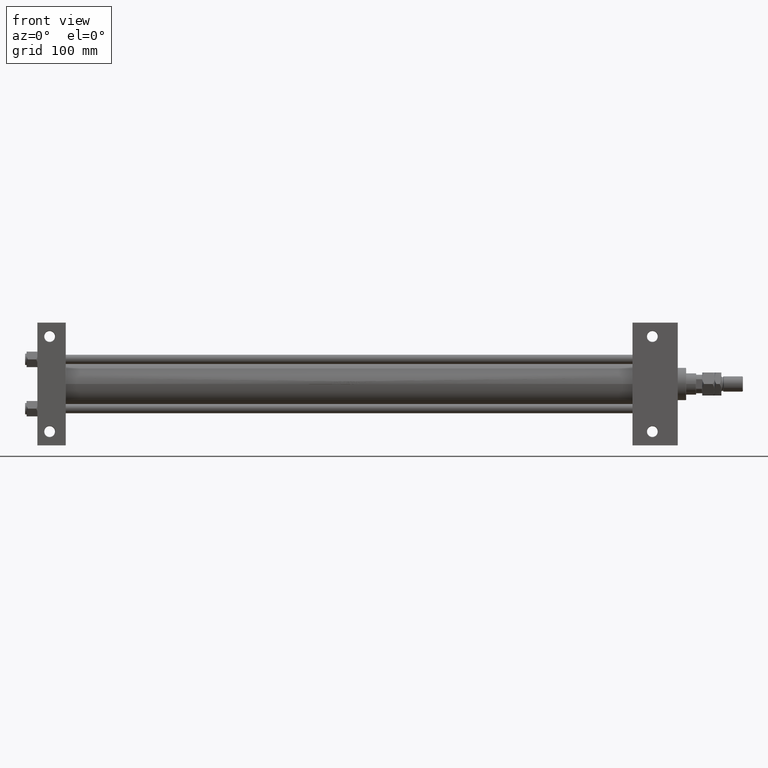
[diagram: clean part render]
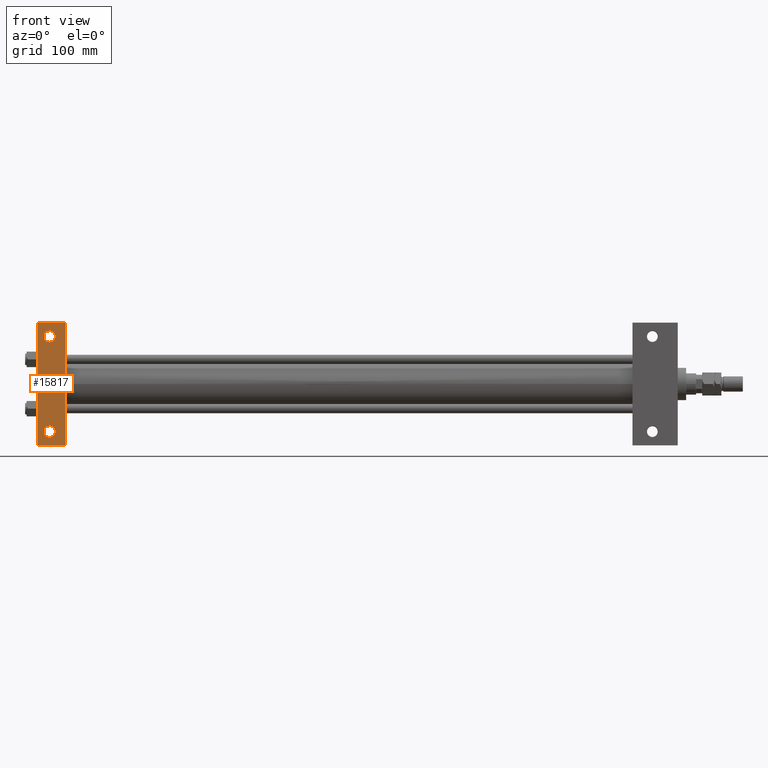
[diagram: same view with one face highlighted and labeled with its STEP entity id]
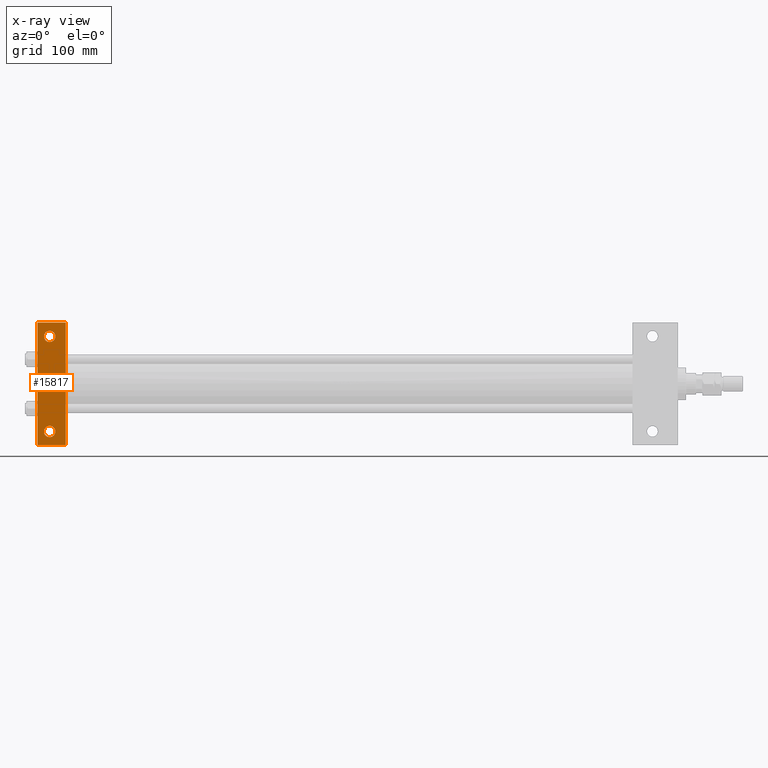
[diagram: x-ray of the same camera — body ghosted, the highlighted face saturated]
A machine part, front view. The second image highlights one B-rep face of the part: STEP entity #15817.
The next image is the same camera in x-ray: the body ghosted, the highlighted face saturated — about 0% of this face is hidden behind the body in this view.
In plain terms, the highlighted planar face has unit normal (0, -1, -0).
Its self-contained STEP definition (entity closure, byte-faithful):
#256 = EDGE_LOOP ( 'NONE', ( #3804, #35898 ) ) ;
#262 = DIRECTION ( 'NONE',  ( 0.000000000000000000, 1.541976423090495880E-16, -1.000000000000000000 ) ) ;
#1510 = CIRCLE ( 'NONE', #4707, 7.499500000000103306 ) ;
#2096 = CARTESIAN_POINT ( 'NONE',  ( 37.00000000000002132, 80.00000000000001421, -45.00000000000000711 ) ) ;
#3216 = CIRCLE ( 'NONE', #38150, 7.499500000000103306 ) ;
#3229 = DIRECTION ( 'NONE',  ( 0.000000000000000000, 1.000000000000000000, 0.000000000000000000 ) ) ;
#3294 = VERTEX_POINT ( 'NONE', #28720 ) ;
#3760 = PLANE ( 'NONE',  #28649 ) ;
#3804 = ORIENTED_EDGE ( 'NONE', *, *, #16948, .T. ) ;
#3926 = VECTOR ( 'NONE', #12180, 1000.000000000000000 ) ;
#4164 = DIRECTION ( 'NONE',  ( 0.000000000000000000, -1.000000000000000000, -1.541976423090495633E-16 ) ) ;
#4178 = CARTESIAN_POINT ( 'NONE',  ( 16.00000000000000000, -62.00000000000009948, -45.00000000000000000 ) ) ;
#4396 = CARTESIAN_POINT ( 'NONE',  ( 16.00000000000000000, 61.99999999999990052, -44.99999999999998579 ) ) ;
#4472 = FACE_BOUND ( 'NONE', #256, .T. ) ;
#4707 = AXIS2_PLACEMENT_3D ( 'NONE', #16747, #13739, #3229 ) ;
#5062 = CARTESIAN_POINT ( 'NONE',  ( 1.999206976185762377E-14, 80.00000000000001421, -45.00000000000000711 ) ) ;
#5339 = EDGE_CURVE ( 'NONE', #47153, #33550, #16078, .T. ) ;
#5655 = DIRECTION ( 'NONE',  ( -0.000000000000000000, -1.541976423090495880E-16, 1.000000000000000000 ) ) ;
#7259 = FACE_BOUND ( 'NONE', #28872, .T. ) ;
#7422 = CARTESIAN_POINT ( 'NONE',  ( 37.00000000000000000, 44.99999999999998579, -44.99999999999998579 ) ) ;
#8221 = CARTESIAN_POINT ( 'NONE',  ( 3.977209754999747208E-16, -79.99999999999998579, -44.99999999999997868 ) ) ;
#8591 = DIRECTION ( 'NONE',  ( 1.000000000000000000, 0.000000000000000000, 0.000000000000000000 ) ) ;
#11462 = FACE_OUTER_BOUND ( 'NONE', #48759, .T. ) ;
#11720 = ORIENTED_EDGE ( 'NONE', *, *, #13693, .T. ) ;
#11872 = DIRECTION ( 'NONE',  ( -0.000000000000000000, -1.541976423090495880E-16, 1.000000000000000000 ) ) ;
#12180 = DIRECTION ( 'NONE',  ( -1.000000000000000000, -0.000000000000000000, -0.000000000000000000 ) ) ;
#13291 = CARTESIAN_POINT ( 'NONE',  ( 8.500499999999897582, -62.00000000000009948, -45.00000000000000000 ) ) ;
#13693 = EDGE_CURVE ( 'NONE', #21870, #3294, #30387, .T. ) ;
#13739 = DIRECTION ( 'NONE',  ( -0.000000000000000000, -1.541976423090495880E-16, 1.000000000000000000 ) ) ;
#14160 = EDGE_CURVE ( 'NONE', #15410, #23574, #15134, .T. ) ;
#15134 = CIRCLE ( 'NONE', #40501, 7.499500000000103306 ) ;
#15410 = VERTEX_POINT ( 'NONE', #31751 ) ;
#15547 = VECTOR ( 'NONE', #37794, 1000.000000000000000 ) ;
#15817 = ADVANCED_FACE ( 'NONE', ( #4472, #7259, #11462 ), #3760, .T. ) ;
#16078 = LINE ( 'NONE', #42663, #36202 ) ;
#16747 = CARTESIAN_POINT ( 'NONE',  ( 16.00000000000000000, 61.99999999999990052, -44.99999999999998579 ) ) ;
#16948 = EDGE_CURVE ( 'NONE', #23403, #32034, #1510, .T. ) ;
#18311 = ORIENTED_EDGE ( 'NONE', *, *, #5339, .T. ) ;
#18704 = EDGE_CURVE ( 'NONE', #32034, #23403, #3216, .T. ) ;
#19155 = CARTESIAN_POINT ( 'NONE',  ( 0.000000000000000000, 44.99999999999998579, -44.99999999999998579 ) ) ;
#19528 = ORIENTED_EDGE ( 'NONE', *, *, #28465, .F. ) ;
#19607 = DIRECTION ( 'NONE',  ( -0.000000000000000000, -1.541976423090495880E-16, 1.000000000000000000 ) ) ;
#20197 = ORIENTED_EDGE ( 'NONE', *, *, #14160, .T. ) ;
#21870 = VERTEX_POINT ( 'NONE', #40981 ) ;
#23403 = VERTEX_POINT ( 'NONE', #37488 ) ;
#23574 = VERTEX_POINT ( 'NONE', #13291 ) ;
#24071 = DIRECTION ( 'NONE',  ( 0.000000000000000000, 1.000000000000000000, 0.000000000000000000 ) ) ;
#25632 = AXIS2_PLACEMENT_3D ( 'NONE', #4178, #11872, #40584 ) ;
#26182 = DIRECTION ( 'NONE',  ( 0.000000000000000000, 1.000000000000000000, 1.541976423090495880E-16 ) ) ;
#26576 = LINE ( 'NONE', #7422, #42993 ) ;
#28465 = EDGE_CURVE ( 'NONE', #47153, #3294, #48741, .T. ) ;
#28649 = AXIS2_PLACEMENT_3D ( 'NONE', #33632, #262, #26182 ) ;
#28720 = CARTESIAN_POINT ( 'NONE',  ( 3.977209754999747208E-16, -79.99999999999998579, -44.99999999999997868 ) ) ;
#28872 = EDGE_LOOP ( 'NONE', ( #41661, #20197 ) ) ;
#30387 = LINE ( 'NONE', #8221, #3926 ) ;
#31751 = CARTESIAN_POINT ( 'NONE',  ( 23.49950000000010419, -62.00000000000009948, -45.00000000000000000 ) ) ;
#32034 = VERTEX_POINT ( 'NONE', #34589 ) ;
#33550 = VERTEX_POINT ( 'NONE', #2096 ) ;
#33585 = CIRCLE ( 'NONE', #25632, 7.499500000000103306 ) ;
#33632 = CARTESIAN_POINT ( 'NONE',  ( 37.00000000000000000, 44.99999999999998579, -44.99999999999998579 ) ) ;
#34589 = CARTESIAN_POINT ( 'NONE',  ( 23.49950000000010419, 61.99999999999990052, -44.99999999999998579 ) ) ;
#34752 = DIRECTION ( 'NONE',  ( 0.000000000000000000, 1.000000000000000000, 0.000000000000000000 ) ) ;
#35898 = ORIENTED_EDGE ( 'NONE', *, *, #18704, .T. ) ;
#36202 = VECTOR ( 'NONE', #8591, 1000.000000000000000 ) ;
#37488 = CARTESIAN_POINT ( 'NONE',  ( 8.500499999999897582, 61.99999999999990052, -44.99999999999998579 ) ) ;
#37794 = DIRECTION ( 'NONE',  ( 0.000000000000000000, -1.000000000000000000, -1.541976423090495633E-16 ) ) ;
#38150 = AXIS2_PLACEMENT_3D ( 'NONE', #4396, #19607, #34752 ) ;
#40501 = AXIS2_PLACEMENT_3D ( 'NONE', #46686, #5655, #24071 ) ;
#40584 = DIRECTION ( 'NONE',  ( 0.000000000000000000, 1.000000000000000000, 0.000000000000000000 ) ) ;
#40762 = ORIENTED_EDGE ( 'NONE', *, *, #45952, .T. ) ;
#40981 = CARTESIAN_POINT ( 'NONE',  ( 37.00000000000000000, -79.99999999999998579, -44.99999999999997868 ) ) ;
#41661 = ORIENTED_EDGE ( 'NONE', *, *, #47864, .T. ) ;
#42663 = CARTESIAN_POINT ( 'NONE',  ( 1.999206976185762377E-14, 80.00000000000001421, -45.00000000000000711 ) ) ;
#42993 = VECTOR ( 'NONE', #4164, 1000.000000000000000 ) ;
#45952 = EDGE_CURVE ( 'NONE', #33550, #21870, #26576, .T. ) ;
#46686 = CARTESIAN_POINT ( 'NONE',  ( 16.00000000000000000, -62.00000000000009948, -45.00000000000000000 ) ) ;
#47153 = VERTEX_POINT ( 'NONE', #5062 ) ;
#47864 = EDGE_CURVE ( 'NONE', #23574, #15410, #33585, .T. ) ;
#48741 = LINE ( 'NONE', #19155, #15547 ) ;
#48759 = EDGE_LOOP ( 'NONE', ( #19528, #18311, #40762, #11720 ) ) ;